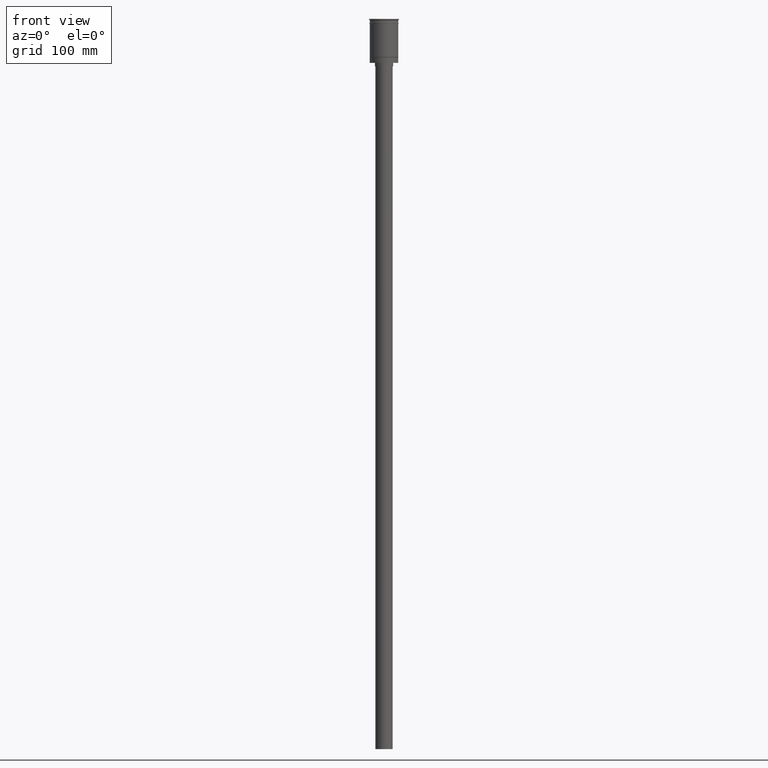
[diagram: clean part render]
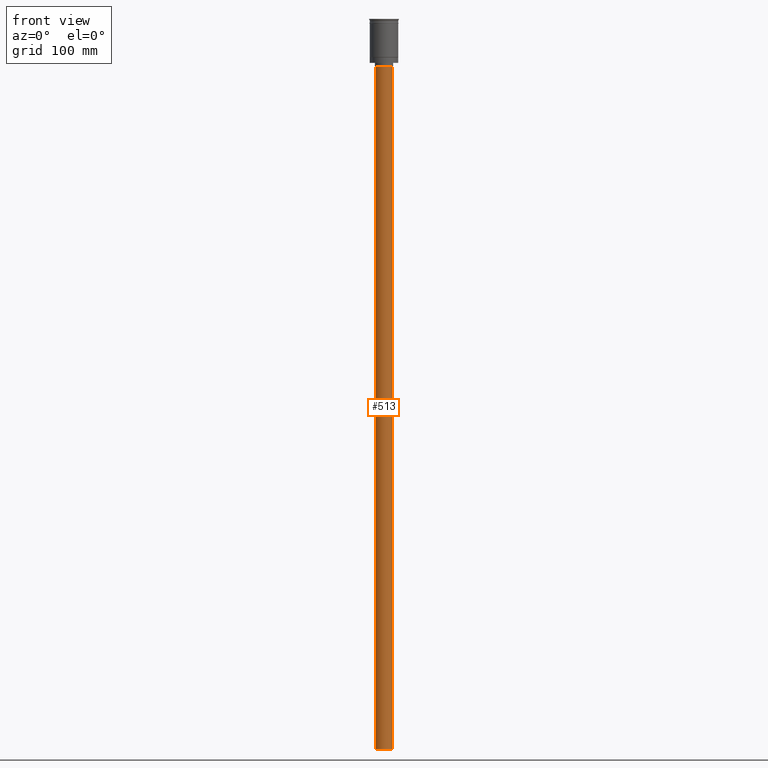
[diagram: same view with one face highlighted and labeled with its STEP entity id]
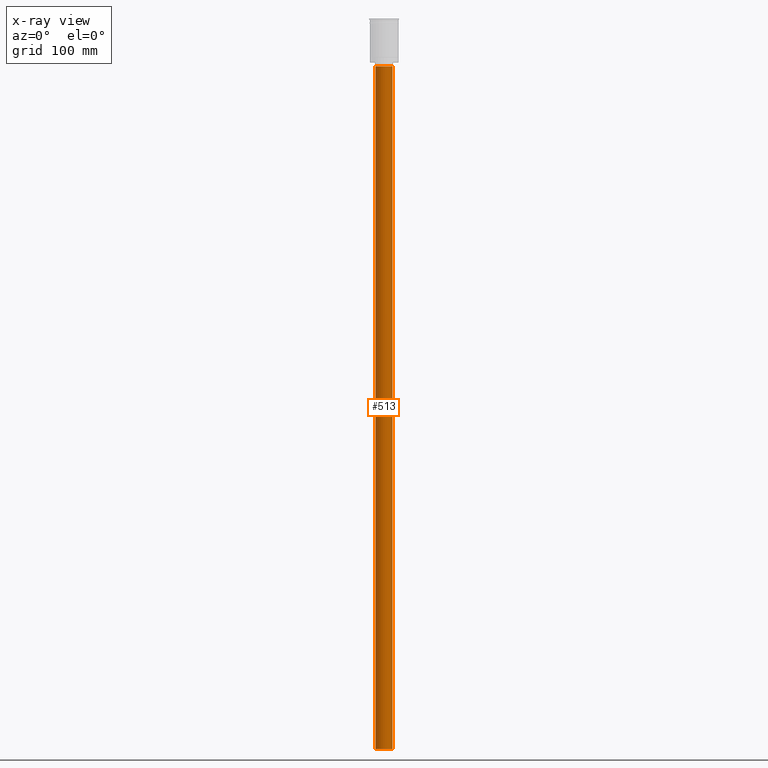
[diagram: x-ray of the same camera — body ghosted, the highlighted face saturated]
A machine part, front view. The second image highlights one B-rep face of the part: STEP entity #513.
The next image is the same camera in x-ray: the body ghosted, the highlighted face saturated — about 0% of this face is hidden behind the body in this view.
In plain terms, the highlighted cylindrical surface (edge-blend (fillet) strip) has radius 7.5 mm, axis along (-0, -0, 1).
Its self-contained STEP definition (entity closure, byte-faithful):
#68 = VERTEX_POINT ( 'NONE', #1385 ) ;
#105 = DIRECTION ( 'NONE',  ( -0.000000000000000000, -0.000000000000000000, 1.000000000000000000 ) ) ;
#144 = ORIENTED_EDGE ( 'NONE', *, *, #480, .T. ) ;
#165 = DIRECTION ( 'NONE',  ( 0.000000000000000000, 0.000000000000000000, -1.000000000000000000 ) ) ;
#173 = CARTESIAN_POINT ( 'NONE',  ( 0.000000000000000000, 0.000000000000000000, -41.50000000000000000 ) ) ;
#176 = EDGE_CURVE ( 'NONE', #1506, #68, #351, .T. ) ;
#203 = CIRCLE ( 'NONE', #1248, 7.500000000000000000 ) ;
#216 = CARTESIAN_POINT ( 'NONE',  ( 7.500000000000000000, 0.000000000000000000, -638.5000000000000000 ) ) ;
#228 = AXIS2_PLACEMENT_3D ( 'NONE', #777, #1429, #1279 ) ;
#236 = VERTEX_POINT ( 'NONE', #426 ) ;
#307 = ORIENTED_EDGE ( 'NONE', *, *, #176, .F. ) ;
#322 = VECTOR ( 'NONE', #105, 1000.000000000000000 ) ;
#351 = CIRCLE ( 'NONE', #1221, 7.500000000000000000 ) ;
#372 = DIRECTION ( 'NONE',  ( -0.000000000000000000, -0.000000000000000000, 1.000000000000000000 ) ) ;
#426 = CARTESIAN_POINT ( 'NONE',  ( -7.500000000000000000, 9.184850993605147944E-16, -41.50000000000000000 ) ) ;
#469 = VERTEX_POINT ( 'NONE', #705 ) ;
#480 = EDGE_CURVE ( 'NONE', #469, #236, #203, .T. ) ;
#513 = ADVANCED_FACE ( 'NONE', ( #1078 ), #924, .T. ) ;
#530 = EDGE_CURVE ( 'NONE', #68, #236, #1582, .T. ) ;
#536 = ORIENTED_EDGE ( 'NONE', *, *, #1524, .T. ) ;
#554 = DIRECTION ( 'NONE',  ( 0.000000000000000000, 0.000000000000000000, -1.000000000000000000 ) ) ;
#594 = CARTESIAN_POINT ( 'NONE',  ( -7.500000000000000000, 9.184850993605147944E-16, -638.5000000000000000 ) ) ;
#705 = CARTESIAN_POINT ( 'NONE',  ( 7.500000000000000000, 0.000000000000000000, -41.50000000000000000 ) ) ;
#726 = DIRECTION ( 'NONE',  ( -1.000000000000000000, 0.000000000000000000, 0.000000000000000000 ) ) ;
#777 = CARTESIAN_POINT ( 'NONE',  ( 0.000000000000000000, 0.000000000000000000, -638.5000000000000000 ) ) ;
#778 = VECTOR ( 'NONE', #372, 1000.000000000000000 ) ;
#835 = CARTESIAN_POINT ( 'NONE',  ( 0.000000000000000000, 0.000000000000000000, -638.5000000000000000 ) ) ;
#924 = CYLINDRICAL_SURFACE ( 'NONE', #228, 7.500000000000000000 ) ;
#1078 = FACE_OUTER_BOUND ( 'NONE', #1497, .T. ) ;
#1116 = CARTESIAN_POINT ( 'NONE',  ( 7.500000000000000000, 0.000000000000000000, -638.5000000000000000 ) ) ;
#1221 = AXIS2_PLACEMENT_3D ( 'NONE', #835, #554, #726 ) ;
#1233 = LINE ( 'NONE', #216, #778 ) ;
#1248 = AXIS2_PLACEMENT_3D ( 'NONE', #173, #165, #1398 ) ;
#1279 = DIRECTION ( 'NONE',  ( 1.000000000000000000, 0.000000000000000000, 0.000000000000000000 ) ) ;
#1385 = CARTESIAN_POINT ( 'NONE',  ( -7.500000000000000000, 9.184850993605147944E-16, -638.5000000000000000 ) ) ;
#1398 = DIRECTION ( 'NONE',  ( -1.000000000000000000, 0.000000000000000000, 0.000000000000000000 ) ) ;
#1429 = DIRECTION ( 'NONE',  ( -0.000000000000000000, -0.000000000000000000, 1.000000000000000000 ) ) ;
#1497 = EDGE_LOOP ( 'NONE', ( #1605, #307, #536, #144 ) ) ;
#1506 = VERTEX_POINT ( 'NONE', #1116 ) ;
#1524 = EDGE_CURVE ( 'NONE', #1506, #469, #1233, .T. ) ;
#1582 = LINE ( 'NONE', #594, #322 ) ;
#1605 = ORIENTED_EDGE ( 'NONE', *, *, #530, .F. ) ;